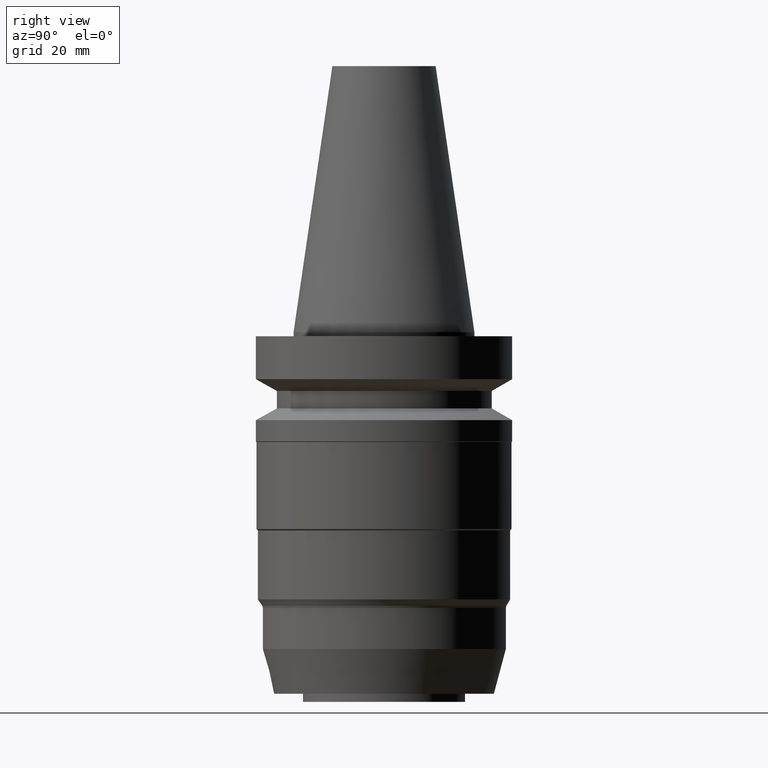
[diagram: clean part render]
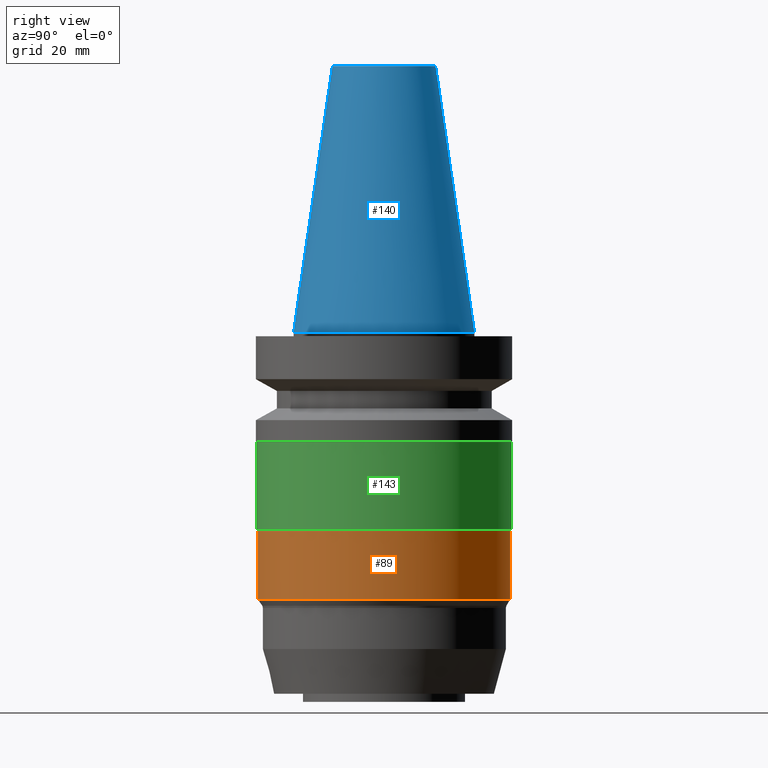
[diagram: same view with three faces highlighted in distinct colors, each labeled with its STEP entity id]
A machine part, right view with three faces highlighted in distinct colors.
Their STEP definitions:

[orange] entity #89 — the highlighted cylindrical surface (bore or boss wall) has radius 31 mm, axis along (0, -0, -1).
#89=ADVANCED_FACE('Unnamed[1]',(#219,#220),#221,.T.);
#145=EDGE_CURVE('Unnamed[1]',#307,#307,#308,.T.);
#155=EDGE_CURVE('Unnamed[1]',#323,#323,#324,.T.);
#219=FACE_BOUND('',#395,.T.);
#220=FACE_BOUND('',#396,.T.);
#221=CYLINDRICAL_SURFACE('',#397,31.0);
#307=VERTEX_POINT('',#503);
#308=CIRCLE('',#504,31.0);
#323=VERTEX_POINT('',#523);
#324=CIRCLE('',#524,31.0);
#395=EDGE_LOOP('',(#582));
#396=EDGE_LOOP('',(#583));
#397=AXIS2_PLACEMENT_3D('',#584,#585,#586);
#503=CARTESIAN_POINT('',(2.98507657292129E-015,31.0000000000001,-48.7499999999938));
#504=AXIS2_PLACEMENT_3D('',#682,#683,#684);
#523=CARTESIAN_POINT('',(4.02182254705591E-015,31.0,-65.681346652048));
#524=AXIS2_PLACEMENT_3D('',#700,#701,#702);
#582=ORIENTED_EDGE('',*,*,#155,.F.);
#583=ORIENTED_EDGE('',*,*,#145,.T.);
#584=CARTESIAN_POINT('',(3.5034495599886E-015,2.63910854018283E-014,-57.2156733260209));
#585=DIRECTION('',(6.12323399573677E-017,-4.10767166376342E-016,-1.0));
#586=DIRECTION('',(2.03250820441117E-032,1.0,-4.10767166376342E-016));
#682=CARTESIAN_POINT('',(2.98507657292129E-015,2.98685060454283E-014,-48.7499999999938));
#683=DIRECTION('',(6.12323399573677E-017,-4.10767166376342E-016,-1.0));
#684=DIRECTION('',(2.03250820441117E-032,1.0,-4.10767166376342E-016));
#700=CARTESIAN_POINT('',(4.02182254705591E-015,2.29136647582284E-014,-65.681346652048));
#701=DIRECTION('',(6.12323399573677E-017,-4.10767166376342E-016,-1.0));
#702=DIRECTION('',(2.03250820441117E-032,1.0,-4.10767166376342E-016));

[blue] entity #140 — the highlighted conical surface has half-angle 8.297 deg.
#69=EDGE_CURVE('Unnamed[1]',#189,#189,#190,.T.);
#84=EDGE_CURVE('Unnamed[1]',#212,#212,#213,.T.);
#140=ADVANCED_FACE('Unnamed[1]',(#298,#299),#300,.T.);
#189=VERTEX_POINT('',#356);
#190=CIRCLE('',#357,12.6875000000001);
#212=VERTEX_POINT('',#386);
#213=CIRCLE('',#387,22.225);
#298=FACE_BOUND('',#492,.T.);
#299=FACE_BOUND('',#493,.T.);
#300=CONICAL_SURFACE('',#494,17.4562500000001,0.144812498238936);
#356=CARTESIAN_POINT('',(-4.00459503321185E-015,12.6875000000002,65.4000000000001));
#357=AXIS2_PLACEMENT_3D('',#551,#552,#553);
#386=CARTESIAN_POINT('',(1.71319921032766E-029,22.2250000000001,-2.8153873565375E-013));
#387=AXIS2_PLACEMENT_3D('',#575,#576,#577);
#492=EDGE_LOOP('',(#671));
#493=EDGE_LOOP('',(#672));
#494=AXIS2_PLACEMENT_3D('',#673,#674,#675);
#551=CARTESIAN_POINT('',(-4.00459503321185E-015,7.67575780872852E-014,65.4000000000001));
#552=DIRECTION('',(6.12323399573677E-017,-4.10767166376342E-016,-1.0));
#553=DIRECTION('',(2.03250820441117E-032,1.0,-4.10767166376342E-016));
#575=CARTESIAN_POINT('',(1.65331138531142E-029,4.98934054062723E-014,-2.70006239588838E-013));
#576=DIRECTION('',(6.12323399573677E-017,-4.10767166376342E-016,-1.0));
#577=DIRECTION('',(2.03250820441117E-032,1.0,-4.10767166376342E-016));
#671=ORIENTED_EDGE('',*,*,#84,.F.);
#672=ORIENTED_EDGE('',*,*,#69,.T.);
#673=CARTESIAN_POINT('',(-2.00229751660592E-015,6.33254917467787E-014,32.6999999999999));
#674=DIRECTION('',(6.12323399573677E-017,-4.10767166376342E-016,-1.0));
#675=DIRECTION('',(2.03250820441117E-032,1.0,-4.10767166376342E-016));

[green] entity #143 — the highlighted cylindrical surface (bore or boss wall) has radius 31.35 mm, axis along (0, -0, -1).
#75=EDGE_CURVE('Unnamed[1]',#198,#198,#199,.T.);
#143=ADVANCED_FACE('Unnamed[1]',(#303,#304),#305,.T.);
#163=EDGE_CURVE('Unnamed[1]',#336,#336,#337,.T.);
#198=VERTEX_POINT('',#368);
#199=CIRCLE('',#369,31.3500000000002);
#303=FACE_BOUND('',#498,.T.);
#304=FACE_BOUND('',#499,.T.);
#305=CYLINDRICAL_SURFACE('',#500,31.3499999999998);
#336=VERTEX_POINT('',#539);
#337=CIRCLE('',#540,31.3499999999995);
#368=CARTESIAN_POINT('',(2.96364525393658E-015,31.3500000000002,-48.3999999999998));
#369=AXIS2_PLACEMENT_3D('',#560,#561,#562);
#498=EDGE_LOOP('',(#677));
#499=EDGE_LOOP('',(#678));
#500=AXIS2_PLACEMENT_3D('',#679,#680,#681);
#539=CARTESIAN_POINT('',(1.65327317884918E-015,31.3499999999995,-27.0000000000042));
#540=AXIS2_PLACEMENT_3D('',#715,#716,#717);
#560=CARTESIAN_POINT('',(2.96364525393658E-015,3.00122745536575E-014,-48.3999999999998));
#561=DIRECTION('',(6.12323399573677E-017,-4.10767166376342E-016,-1.0));
#562=DIRECTION('',(2.03250820441117E-032,1.0,-4.10767166376342E-016));
#677=ORIENTED_EDGE('',*,*,#75,.F.);
#678=ORIENTED_EDGE('',*,*,#163,.T.);
#679=CARTESIAN_POINT('',(2.30845921639288E-015,3.44074832338835E-014,-37.700000000002));
#680=DIRECTION('',(6.12323399573677E-017,-4.10767166376342E-016,-1.0));
#681=DIRECTION('',(2.03250820441117E-032,1.0,-4.10767166376342E-016));
#715=CARTESIAN_POINT('',(1.65327317884918E-015,3.88026919141094E-014,-27.0000000000042));
#716=DIRECTION('',(6.12323399573676E-017,-4.10767166376342E-016,-1.0));
#717=DIRECTION('',(2.03250820441117E-032,1.0,-4.10767166376342E-016));